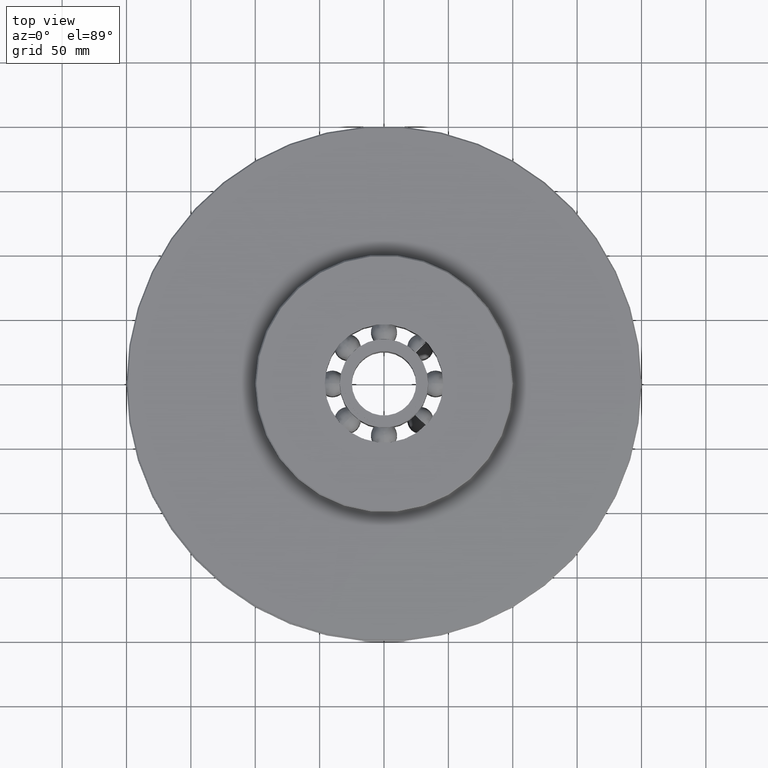
[diagram: clean part render]
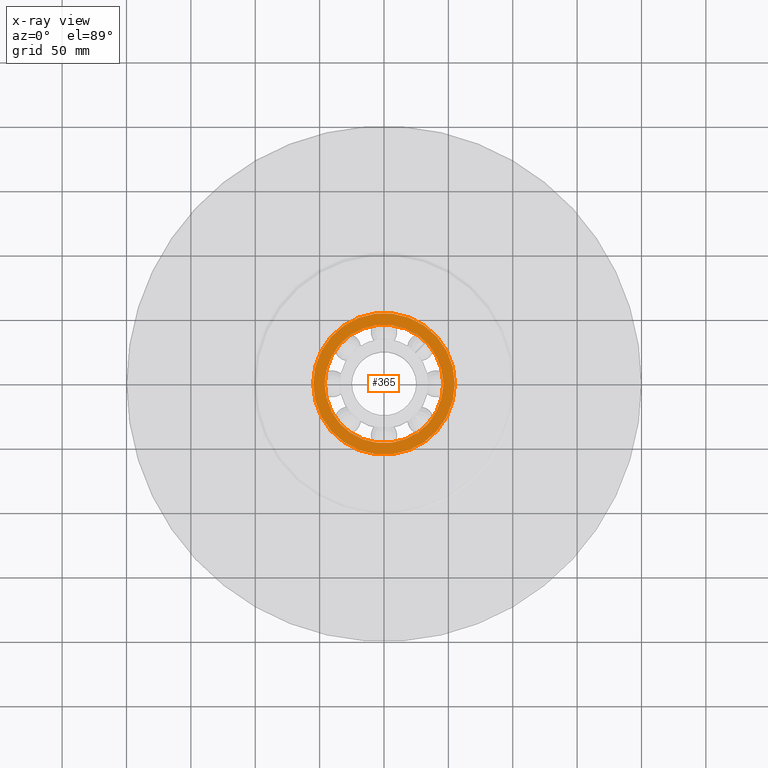
[diagram: x-ray — body ghosted, one internal face saturated and labeled with its STEP entity id]
A machine part, top view, then the same camera in x-ray: the body is ghosted and one INTERNAL B-rep face — a face not visible from any outside direction — is saturated and labeled: STEP entity #365.
In plain terms, the highlighted planar face has unit normal (0, 0, -1).
Its self-contained STEP definition (entity closure, byte-faithful):
#365=ADVANCED_FACE('',(#761,#762),#763,.T.);
#761=FACE_BOUND('',#1171,.T.);
#762=FACE_OUTER_BOUND('',#1172,.T.);
#763=PLANE('',#1173);
#1171=EDGE_LOOP('',(#2411,#2412));
#1172=EDGE_LOOP('',(#2413,#2414));
#1173=AXIS2_PLACEMENT_3D('',#2415,#2416,#2417);
#2411=ORIENTED_EDGE('',*,*,#2732,.T.);
#2412=ORIENTED_EDGE('',*,*,#3063,.T.);
#2413=ORIENTED_EDGE('',*,*,#2710,.F.);
#2414=ORIENTED_EDGE('',*,*,#3070,.F.);
#2415=CARTESIAN_POINT('',(0.0,0.0,2.5));
#2416=DIRECTION('',(0.0,0.0,-1.0));
#2417=DIRECTION('',(-1.0,0.0,0.0));
#2710=EDGE_CURVE('',#3346,#3349,#3350,.T.);
#2732=EDGE_CURVE('',#3371,#3384,#3386,.T.);
#3063=EDGE_CURVE('',#3384,#3371,#3880,.T.);
#3070=EDGE_CURVE('',#3349,#3346,#3887,.T.);
#3346=VERTEX_POINT('',#5399);
#3349=VERTEX_POINT('',#5403);
#3350=CIRCLE('',#5404,55.0);
#3371=VERTEX_POINT('',#5523);
#3384=VERTEX_POINT('',#5628);
#3386=CIRCLE('',#5631,46.05);
#3880=CIRCLE('',#9028,46.05);
#3887=CIRCLE('',#9086,55.0);
#5399=CARTESIAN_POINT('',(55.0,0.0,2.5));
#5403=CARTESIAN_POINT('',(-55.0,6.73555739531044E-015,2.5));
#5404=AXIS2_PLACEMENT_3D('',#9325,#9326,#9327);
#5523=CARTESIAN_POINT('',(46.05,0.0,2.5));
#5628=CARTESIAN_POINT('',(-46.05,5.63949851007356E-015,2.5));
#5631=AXIS2_PLACEMENT_3D('',#9346,#9347,#9348);
#9028=AXIS2_PLACEMENT_3D('',#9692,#9693,#9694);
#9086=AXIS2_PLACEMENT_3D('',#9695,#9696,#9697);
#9325=CARTESIAN_POINT('',(0.0,0.0,2.5));
#9326=DIRECTION('',(0.0,-0.0,1.0));
#9327=DIRECTION('',(1.0,0.0,0.0));
#9346=CARTESIAN_POINT('',(0.0,0.0,2.5));
#9347=DIRECTION('',(0.0,-0.0,1.0));
#9348=DIRECTION('',(1.0,0.0,0.0));
#9692=CARTESIAN_POINT('',(0.0,0.0,2.5));
#9693=DIRECTION('',(0.0,-0.0,1.0));
#9694=DIRECTION('',(1.0,0.0,0.0));
#9695=CARTESIAN_POINT('',(0.0,0.0,2.5));
#9696=DIRECTION('',(0.0,-0.0,1.0));
#9697=DIRECTION('',(1.0,0.0,0.0));